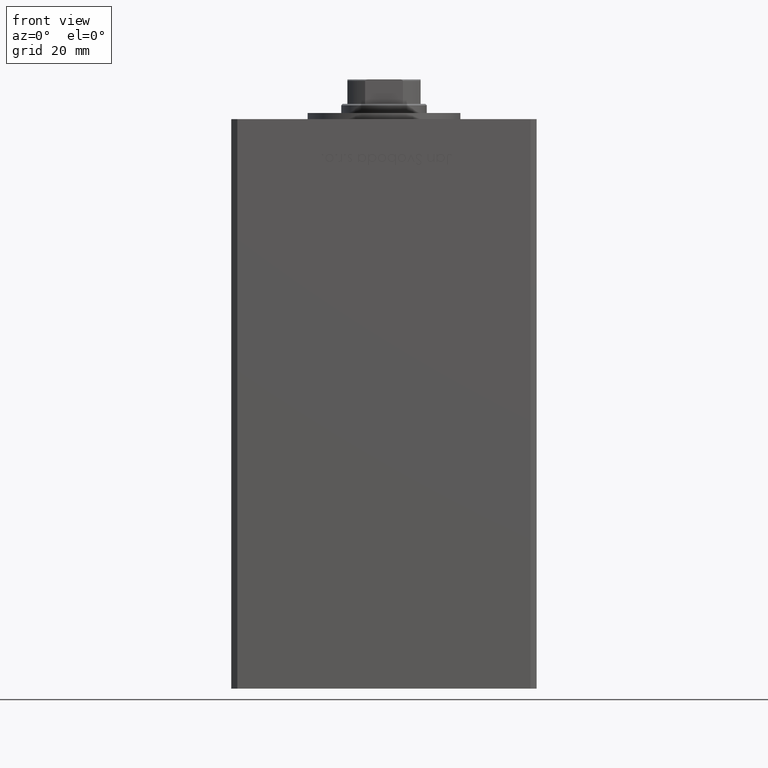
[diagram: clean part render]
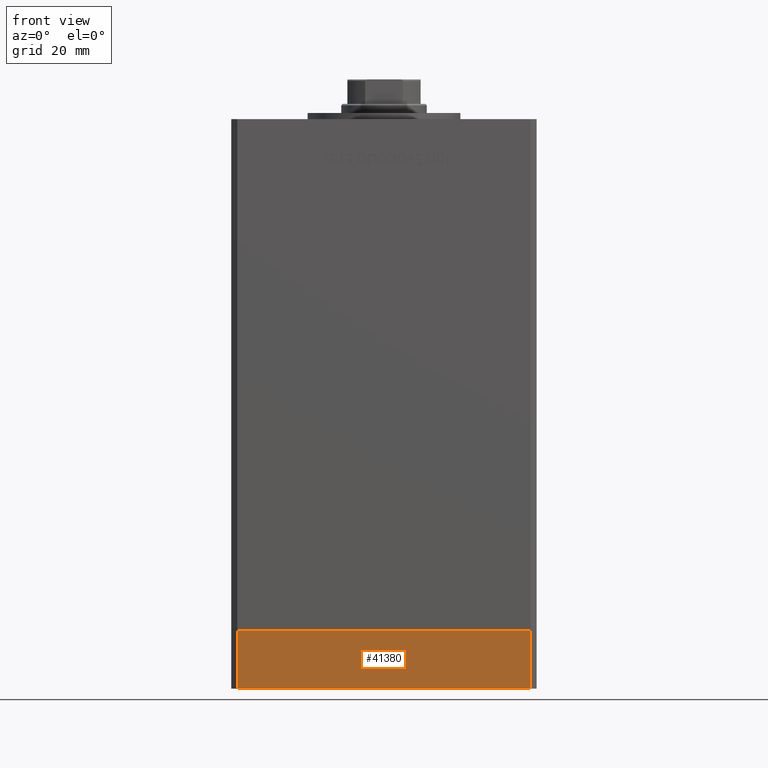
[diagram: same view with one face highlighted and labeled with its STEP entity id]
A machine part, front view. The second image highlights one B-rep face of the part: STEP entity #41380.
In plain terms, the highlighted planar face has unit normal (0, -1, -0).
Its self-contained STEP definition (entity closure, byte-faithful):
#1248 = CARTESIAN_POINT ( 'NONE',  ( -47.99999999999999289, -43.50000000000001421, 0.000000000000000000 ) ) ;
#2508 = VECTOR ( 'NONE', #16597, 1000.000000000000000 ) ;
#3661 = CARTESIAN_POINT ( 'NONE',  ( -47.99999999999999289, -43.50000000000001421, -19.00000000000000000 ) ) ;
#4747 = CARTESIAN_POINT ( 'NONE',  ( -47.99999999999999289, -43.50000000000001421, -19.00000000000000000 ) ) ;
#5222 = CARTESIAN_POINT ( 'NONE',  ( 47.99999999999999289, -43.50000000000001421, -19.00000000000000000 ) ) ;
#10227 = LINE ( 'NONE', #22089, #17812 ) ;
#11323 = DIRECTION ( 'NONE',  ( 0.000000000000000000, -1.000000000000000000, 0.000000000000000000 ) ) ;
#11484 = VERTEX_POINT ( 'NONE', #36515 ) ;
#12267 = EDGE_CURVE ( 'NONE', #23959, #11484, #29136, .T. ) ;
#16156 = LINE ( 'NONE', #20105, #20258 ) ;
#16597 = DIRECTION ( 'NONE',  ( 1.000000000000000000, 0.000000000000000000, 0.000000000000000000 ) ) ;
#17812 = VECTOR ( 'NONE', #49797, 1000.000000000000000 ) ;
#20105 = CARTESIAN_POINT ( 'NONE',  ( -47.99999999999999289, -43.50000000000001421, 0.000000000000000000 ) ) ;
#20258 = VECTOR ( 'NONE', #44914, 1000.000000000000000 ) ;
#21198 = ORIENTED_EDGE ( 'NONE', *, *, #22188, .F. ) ;
#22089 = CARTESIAN_POINT ( 'NONE',  ( -47.99999999999999289, -43.50000000000001421, -19.00000000000000000 ) ) ;
#22188 = EDGE_CURVE ( 'NONE', #30586, #11484, #16156, .T. ) ;
#23959 = VERTEX_POINT ( 'NONE', #5222 ) ;
#24120 = DIRECTION ( 'NONE',  ( 0.000000000000000000, 0.000000000000000000, 1.000000000000000000 ) ) ;
#28428 = PLANE ( 'NONE',  #40900 ) ;
#28609 = CARTESIAN_POINT ( 'NONE',  ( 47.99999999999999289, -43.50000000000001421, -19.00000000000000000 ) ) ;
#28761 = CARTESIAN_POINT ( 'NONE',  ( -47.99999999999999289, -43.50000000000001421, -19.00000000000000000 ) ) ;
#29015 = LINE ( 'NONE', #4747, #2508 ) ;
#29136 = LINE ( 'NONE', #28609, #45393 ) ;
#29709 = ORIENTED_EDGE ( 'NONE', *, *, #12267, .T. ) ;
#30210 = VERTEX_POINT ( 'NONE', #28761 ) ;
#30586 = VERTEX_POINT ( 'NONE', #1248 ) ;
#31369 = FACE_OUTER_BOUND ( 'NONE', #40045, .T. ) ;
#35572 = DIRECTION ( 'NONE',  ( 0.000000000000000000, -0.000000000000000000, -1.000000000000000000 ) ) ;
#35991 = ORIENTED_EDGE ( 'NONE', *, *, #42864, .T. ) ;
#36515 = CARTESIAN_POINT ( 'NONE',  ( 47.99999999999999289, -43.50000000000001421, 0.000000000000000000 ) ) ;
#39004 = ORIENTED_EDGE ( 'NONE', *, *, #48292, .F. ) ;
#40045 = EDGE_LOOP ( 'NONE', ( #21198, #39004, #35991, #29709 ) ) ;
#40900 = AXIS2_PLACEMENT_3D ( 'NONE', #3661, #11323, #35572 ) ;
#41380 = ADVANCED_FACE ( 'NONE', ( #31369 ), #28428, .T. ) ;
#42864 = EDGE_CURVE ( 'NONE', #30210, #23959, #29015, .T. ) ;
#44914 = DIRECTION ( 'NONE',  ( 1.000000000000000000, 0.000000000000000000, 0.000000000000000000 ) ) ;
#45393 = VECTOR ( 'NONE', #24120, 1000.000000000000000 ) ;
#48292 = EDGE_CURVE ( 'NONE', #30210, #30586, #10227, .T. ) ;
#49797 = DIRECTION ( 'NONE',  ( 0.000000000000000000, 0.000000000000000000, 1.000000000000000000 ) ) ;